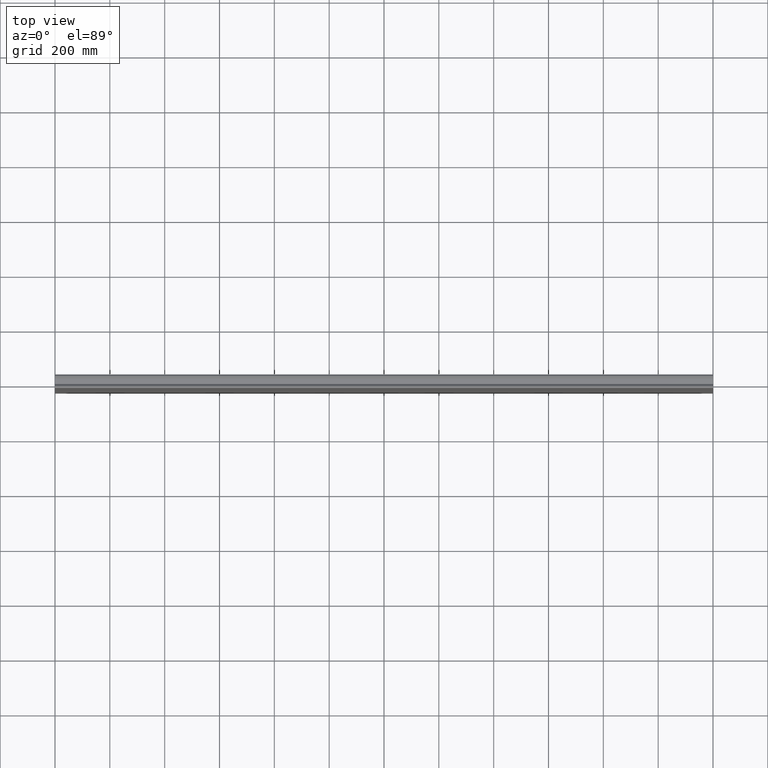
[diagram: clean part render]
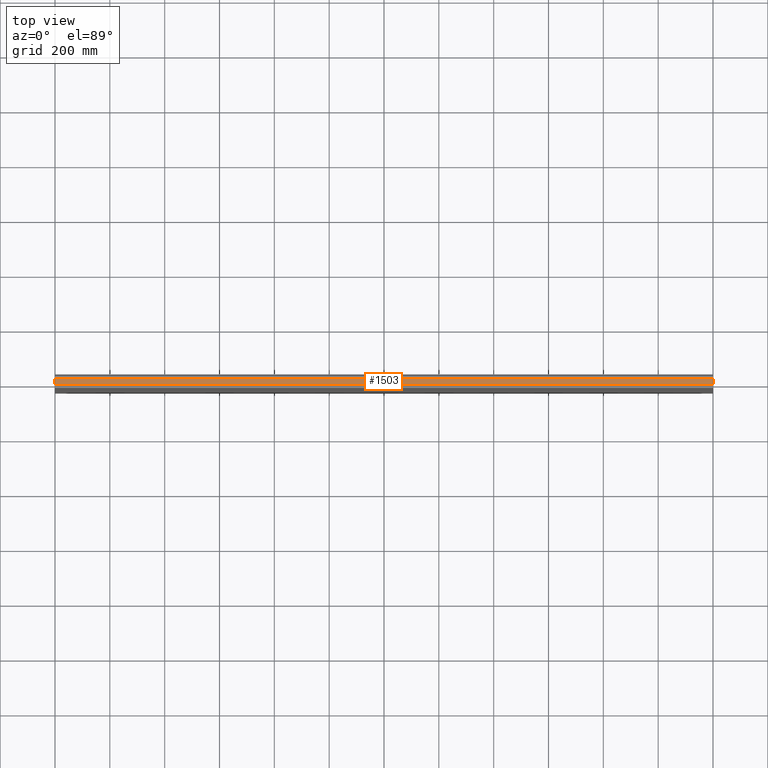
[diagram: same view with one face highlighted and labeled with its STEP entity id]
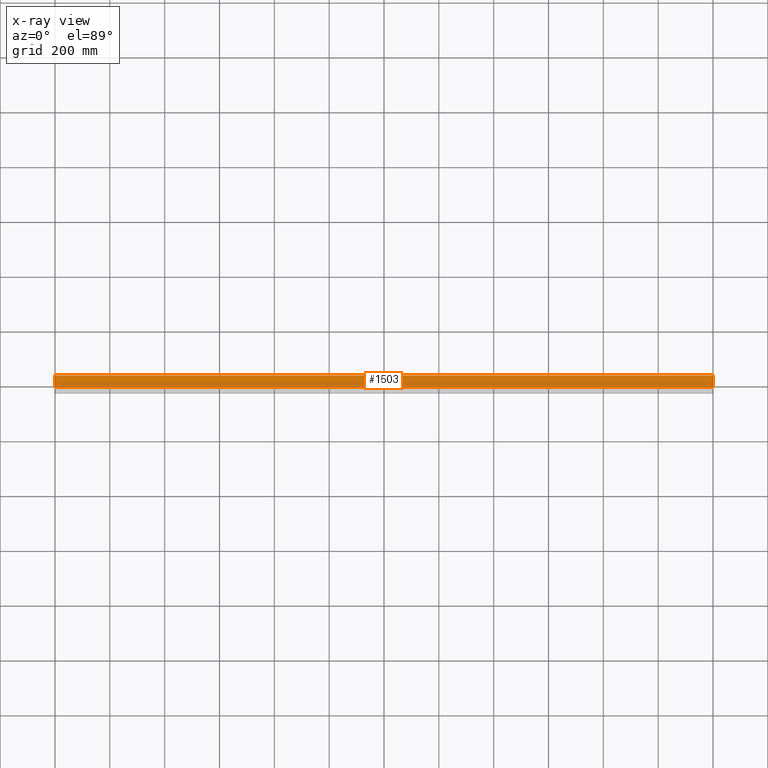
[diagram: x-ray of the same camera — body ghosted, the highlighted face saturated]
A machine part, top view. The second image highlights one B-rep face of the part: STEP entity #1503.
The next image is the same camera in x-ray: the body ghosted, the highlighted face saturated — about 0% of this face is hidden behind the body in this view.
In plain terms, the highlighted planar face has unit normal (0, 0, -1).
Its self-contained STEP definition (entity closure, byte-faithful):
#64 = LINE ( 'NONE', #500, #332 ) ;
#111 = VECTOR ( 'NONE', #1713, 1000.000000000000000 ) ;
#164 = CARTESIAN_POINT ( 'NONE',  ( 1199.999999999999773, 20.53866532607163720, 573.0000000000000000 ) ) ;
#205 = VECTOR ( 'NONE', #442, 1000.000000000000000 ) ;
#332 = VECTOR ( 'NONE', #1332, 1000.000000000000000 ) ;
#409 = CARTESIAN_POINT ( 'NONE',  ( -1200.000000000000227, 2684.120642039801169, 573.0000000000000000 ) ) ;
#442 = DIRECTION ( 'NONE',  ( -0.000000000000000000, -1.000000000000000000, -0.000000000000000000 ) ) ;
#500 = CARTESIAN_POINT ( 'NONE',  ( -1200.000000000000227, 2684.120642039801169, 573.0000000000000000 ) ) ;
#577 = VERTEX_POINT ( 'NONE', #164 ) ;
#722 = EDGE_LOOP ( 'NONE', ( #1201, #1153, #2126, #1453 ) ) ;
#961 = CARTESIAN_POINT ( 'NONE',  ( -1200.000000000000227, -20.53866532607169404, 573.0000000000000000 ) ) ;
#1020 = DIRECTION ( 'NONE',  ( -1.000000000000000000, 0.000000000000000000, -0.000000000000000000 ) ) ;
#1026 = VERTEX_POINT ( 'NONE', #961 ) ;
#1075 = EDGE_CURVE ( 'NONE', #2546, #1026, #64, .T. ) ;
#1153 = ORIENTED_EDGE ( 'NONE', *, *, #2448, .F. ) ;
#1201 = ORIENTED_EDGE ( 'NONE', *, *, #2549, .F. ) ;
#1238 = FACE_OUTER_BOUND ( 'NONE', #722, .T. ) ;
#1250 = AXIS2_PLACEMENT_3D ( 'NONE', #409, #2082, #1020 ) ;
#1280 = EDGE_CURVE ( 'NONE', #2546, #577, #2123, .T. ) ;
#1291 = LINE ( 'NONE', #2128, #205 ) ;
#1332 = DIRECTION ( 'NONE',  ( -0.000000000000000000, -1.000000000000000000, -0.000000000000000000 ) ) ;
#1421 = CARTESIAN_POINT ( 'NONE',  ( -1200.000000000000227, 20.53866532607163720, 573.0000000000000000 ) ) ;
#1453 = ORIENTED_EDGE ( 'NONE', *, *, #1075, .T. ) ;
#1503 = ADVANCED_FACE ( 'NONE', ( #1238 ), #2296, .F. ) ;
#1713 = DIRECTION ( 'NONE',  ( 1.000000000000000000, 0.000000000000000000, 0.000000000000000000 ) ) ;
#2028 = CARTESIAN_POINT ( 'NONE',  ( 1199.999999999999773, -20.53866532607169404, 573.0000000000000000 ) ) ;
#2082 = DIRECTION ( 'NONE',  ( 0.000000000000000000, 0.000000000000000000, -1.000000000000000000 ) ) ;
#2123 = LINE ( 'NONE', #2141, #111 ) ;
#2126 = ORIENTED_EDGE ( 'NONE', *, *, #1280, .F. ) ;
#2128 = CARTESIAN_POINT ( 'NONE',  ( 1199.999999999999773, 2684.120642039801169, 573.0000000000000000 ) ) ;
#2141 = CARTESIAN_POINT ( 'NONE',  ( 1199.999999999999773, 20.53866532607163720, 573.0000000000000000 ) ) ;
#2243 = DIRECTION ( 'NONE',  ( -1.000000000000000000, -0.000000000000000000, -0.000000000000000000 ) ) ;
#2296 = PLANE ( 'NONE',  #1250 ) ;
#2448 = EDGE_CURVE ( 'NONE', #577, #2460, #1291, .T. ) ;
#2460 = VERTEX_POINT ( 'NONE', #2521 ) ;
#2521 = CARTESIAN_POINT ( 'NONE',  ( 1199.999999999999773, -20.53866532607169404, 573.0000000000000000 ) ) ;
#2546 = VERTEX_POINT ( 'NONE', #1421 ) ;
#2549 = EDGE_CURVE ( 'NONE', #2460, #1026, #2670, .T. ) ;
#2662 = VECTOR ( 'NONE', #2243, 1000.000000000000000 ) ;
#2670 = LINE ( 'NONE', #2028, #2662 ) ;